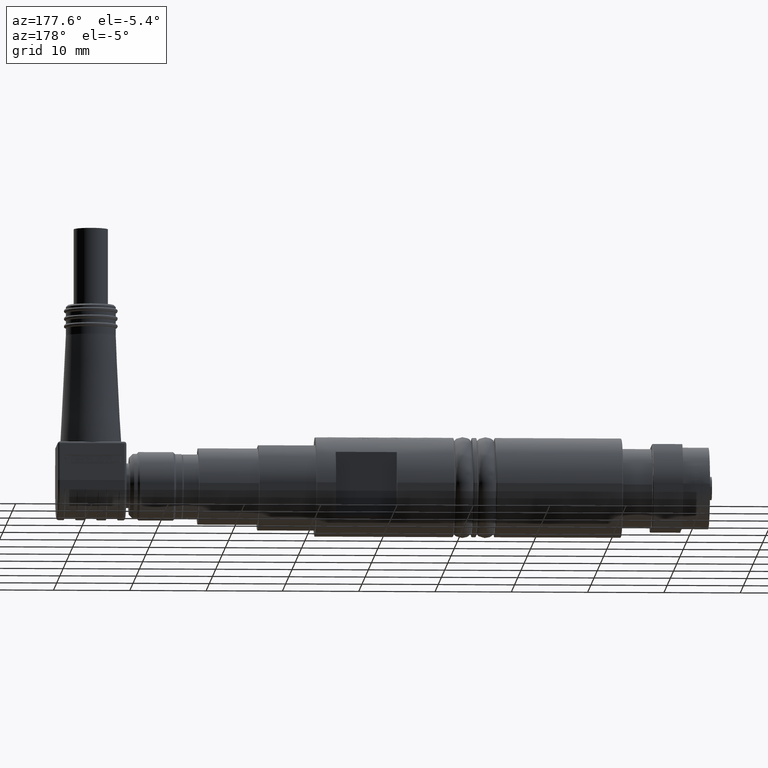
[diagram: clean part render]
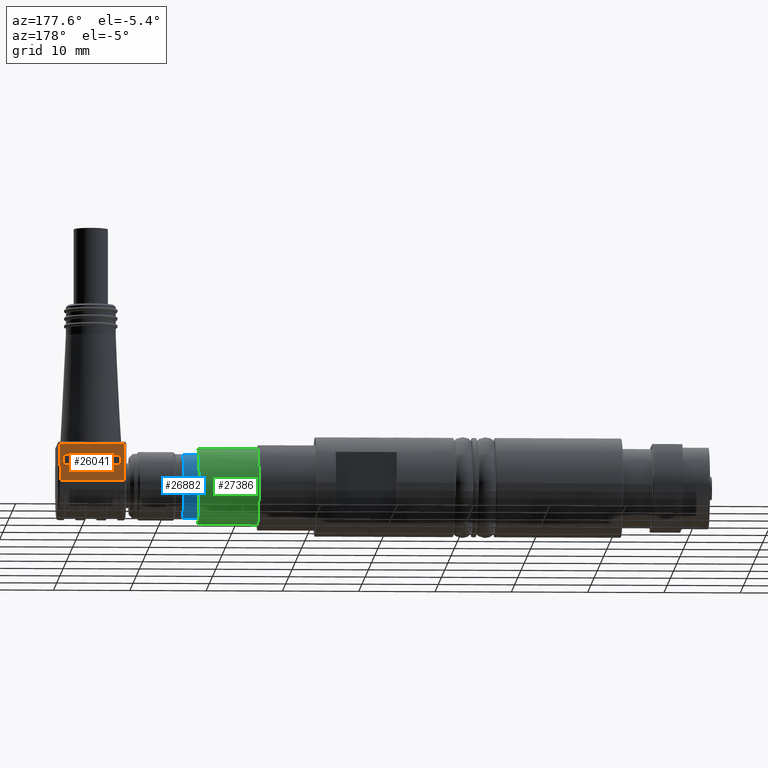
[diagram: same view with three faces highlighted in distinct colors, each labeled with its STEP entity id]
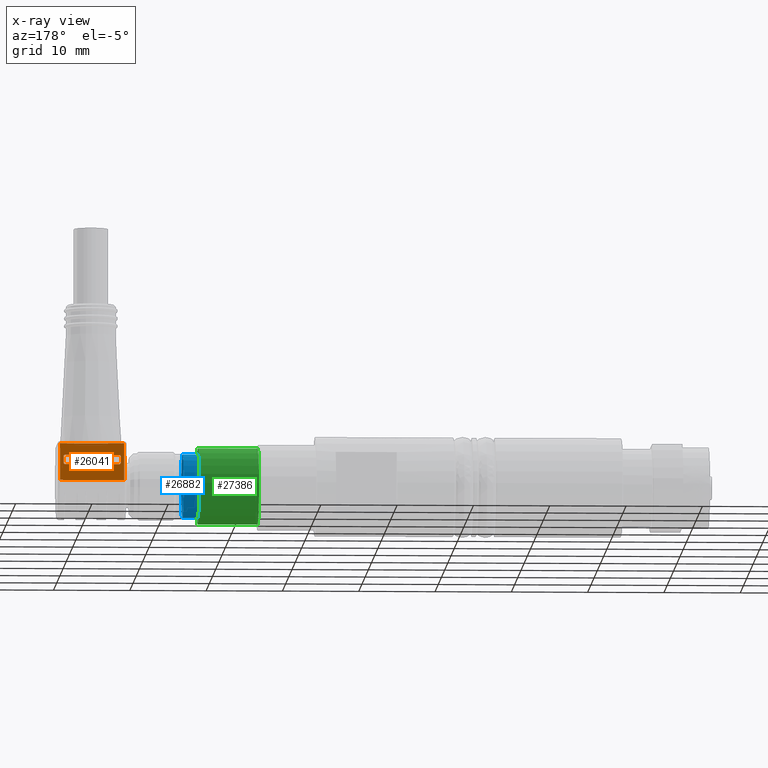
[diagram: x-ray of the same camera — body ghosted, the three highlighted faces saturated]
A machine part, auxiliary view with three faces highlighted in distinct colors.
The next image is the same camera in x-ray (body ghosted, the three faces saturated) — at least one of them is partly hidden behind the body in this view.
Their STEP definitions:

[orange] entity #26041 — the highlighted planar face has unit normal (0, 0.9967, 0.0817).
#382=PLANE('',#27516);
#1292=FACE_BOUND('',#8487,.T.);
#1474=LINE('',#35723,#3858);
#1479=LINE('',#35743,#3863);
#1487=LINE('',#35765,#3871);
#1492=LINE('',#35781,#3876);
#1493=LINE('',#35784,#3877);
#1494=LINE('',#35788,#3878);
#1495=LINE('',#35792,#3879);
#1496=LINE('',#35796,#3880);
#3858=VECTOR('',#29407,0.191849436109898);
#3863=VECTOR('',#29416,0.330708661417323);
#3871=VECTOR('',#29432,0.191849436109898);
#3876=VECTOR('',#29455,0.330708661417323);
#3877=VECTOR('',#29456,0.0334645669291339);
#3878=VECTOR('',#29459,0.279527559055118);
#3879=VECTOR('',#29462,0.0334645669291337);
#3880=VECTOR('',#29465,0.279527559055118);
#7065=FACE_OUTER_BOUND('',#8486,.T.);
#8486=EDGE_LOOP('',(#17180,#17181,#17182,#17183));
#8487=EDGE_LOOP('',(#17184,#17185,#17186,#17187,#17188,#17189,#17190,#17191));
#10098=CIRCLE('',#27517,0.00787401574803146);
#10099=CIRCLE('',#27518,0.00787401574803157);
#10100=CIRCLE('',#27519,0.00787401574803142);
#10101=CIRCLE('',#27520,0.00787401574803154);
#10821=VERTEX_POINT('',#35696);
#10827=VERTEX_POINT('',#35710);
#10828=VERTEX_POINT('',#35714);
#10836=VERTEX_POINT('',#35761);
#10840=VERTEX_POINT('',#35782);
#10841=VERTEX_POINT('',#35783);
#10842=VERTEX_POINT('',#35785);
#10843=VERTEX_POINT('',#35787);
#10844=VERTEX_POINT('',#35789);
#10845=VERTEX_POINT('',#35791);
#10846=VERTEX_POINT('',#35793);
#10847=VERTEX_POINT('',#35795);
#13365=EDGE_CURVE('',#10828,#10827,#1474,.T.);
#13371=EDGE_CURVE('',#10827,#10821,#1479,.T.);
#13381=EDGE_CURVE('',#10821,#10836,#1487,.T.);
#13390=EDGE_CURVE('',#10836,#10828,#1492,.T.);
#13391=EDGE_CURVE('',#10840,#10841,#1493,.T.);
#13392=EDGE_CURVE('',#10841,#10842,#10098,.T.);
#13393=EDGE_CURVE('',#10842,#10843,#1494,.T.);
#13394=EDGE_CURVE('',#10843,#10844,#10099,.T.);
#13395=EDGE_CURVE('',#10844,#10845,#1495,.T.);
#13396=EDGE_CURVE('',#10845,#10846,#10100,.T.);
#13397=EDGE_CURVE('',#10846,#10847,#1496,.T.);
#13398=EDGE_CURVE('',#10847,#10840,#10101,.T.);
#17180=ORIENTED_EDGE('',*,*,#13381,.F.);
#17181=ORIENTED_EDGE('',*,*,#13371,.F.);
#17182=ORIENTED_EDGE('',*,*,#13365,.F.);
#17183=ORIENTED_EDGE('',*,*,#13390,.F.);
#17184=ORIENTED_EDGE('',*,*,#13391,.T.);
#17185=ORIENTED_EDGE('',*,*,#13392,.T.);
#17186=ORIENTED_EDGE('',*,*,#13393,.T.);
#17187=ORIENTED_EDGE('',*,*,#13394,.T.);
#17188=ORIENTED_EDGE('',*,*,#13395,.T.);
#17189=ORIENTED_EDGE('',*,*,#13396,.T.);
#17190=ORIENTED_EDGE('',*,*,#13397,.T.);
#17191=ORIENTED_EDGE('',*,*,#13398,.T.);
#26041=ADVANCED_FACE('',(#7065,#1292),#382,.T.);
#27516=AXIS2_PLACEMENT_3D('',#35780,#29453,#29454);
#27517=AXIS2_PLACEMENT_3D('',#35786,#29457,#29458);
#27518=AXIS2_PLACEMENT_3D('',#35790,#29460,#29461);
#27519=AXIS2_PLACEMENT_3D('',#35794,#29463,#29464);
#27520=AXIS2_PLACEMENT_3D('',#35797,#29466,#29467);
#29407=DIRECTION('',(-5.25893123283372E-17,-0.081746005589057,0.996653194732367));
#29416=DIRECTION('',(-1.,6.43325774138834E-16,3.94430452610506E-31));
#29432=DIRECTION('',(5.25893123283372E-17,0.081746005589057,-0.996653194732367));
#29453=DIRECTION('center_axis',(6.43464564049143E-16,0.996653194732367,
0.081746005589057));
#29454=DIRECTION('ref_axis',(1.,-7.04991620636976E-16,0.));
#29455=DIRECTION('',(1.,-6.43325774138834E-16,-3.94430452610506E-31));
#29456=DIRECTION('',(5.25893123283366E-17,0.081746005589056,-0.996653194732367));
#29457=DIRECTION('center_axis',(-6.43464564049143E-16,-0.996653194732367,
-0.0817460055890549));
#29458=DIRECTION('ref_axis',(6.96650031232834E-15,0.081746005589055,-0.996653194732368));
#29459=DIRECTION('',(1.,-6.43325774138834E-16,-3.94430452610506E-31));
#29460=DIRECTION('center_axis',(-6.41172688049143E-16,-0.996653194732367,
-0.081746005589057));
#29461=DIRECTION('ref_axis',(1.,-6.43325774138834E-16,-3.94430452610506E-31));
#29462=DIRECTION('',(-5.25893123283372E-17,-0.081746005589057,0.996653194732367));
#29463=DIRECTION('center_axis',(-6.43464564049143E-16,-0.996653194732367,
-0.0817460055890549));
#29464=DIRECTION('ref_axis',(-1.11298393123283E-14,-0.0817460055890549,
0.996653194732367));
#29465=DIRECTION('',(-1.,6.43325774138834E-16,3.94430452610506E-31));
#29466=DIRECTION('center_axis',(-6.41172688049143E-16,-0.996653194732367,
-0.081746005589057));
#29467=DIRECTION('ref_axis',(-1.,6.43325774138834E-16,3.94430452610506E-31));
#35696=CARTESIAN_POINT('',(2.89084251968504,0.160889491313096,0.20568991345184));
#35710=CARTESIAN_POINT('',(3.22155118110236,0.160889491313095,0.20568991345184));
#35714=CARTESIAN_POINT('',(3.22155118110236,0.176572416389592,0.0144825600453067));
#35723=CARTESIAN_POINT('',(3.22155118110236,0.176572416389592,0.0144825600453067));
#35743=CARTESIAN_POINT('',(3.22155118110236,0.160889491313095,0.20568991345184));
#35761=CARTESIAN_POINT('',(2.89084251968504,0.176572416389593,0.0144825600453067));
#35765=CARTESIAN_POINT('',(2.89084251968504,0.160889491313096,0.20568991345184));
#35780=CARTESIAN_POINT('Origin',(2.87903149606299,0.159999936238092,0.216535433070867));
#35781=CARTESIAN_POINT('',(2.89084251968504,0.176572416389593,0.0144825600453067));
#35782=CARTESIAN_POINT('',(2.90855905511811,0.16643662959156,0.138058803564381));
#35783=CARTESIAN_POINT('',(2.90855905511811,0.169172224266785,0.104706236024125));
#35784=CARTESIAN_POINT('',(2.90855905511811,0.16643662959156,0.138058803564381));
#35785=CARTESIAN_POINT('',(2.91643307086614,0.169815893602132,0.0968585730734764));
#35786=CARTESIAN_POINT('Origin',(2.91643307086614,0.169172224266785,0.104706236024125));
#35787=CARTESIAN_POINT('',(3.19596062992126,0.169815893602132,0.0968585730734764));
#35788=CARTESIAN_POINT('',(2.91643307086614,0.169815893602132,0.0968585730734764));
#35789=CARTESIAN_POINT('',(3.20383464566929,0.169172224266785,0.104706236024125));
#35790=CARTESIAN_POINT('Origin',(3.19596062992126,0.169172224266785,0.104706236024125));
#35791=CARTESIAN_POINT('',(3.20383464566929,0.16643662959156,0.138058803564381));
#35792=CARTESIAN_POINT('',(3.20383464566929,0.169172224266785,0.104706236024125));
#35793=CARTESIAN_POINT('',(3.19596062992126,0.165792960256213,0.14590646651503));
#35794=CARTESIAN_POINT('Origin',(3.19596062992126,0.16643662959156,0.138058803564381));
#35795=CARTESIAN_POINT('',(2.91643307086614,0.165792960256214,0.14590646651503));
#35796=CARTESIAN_POINT('',(3.19596062992126,0.165792960256213,0.14590646651503));
#35797=CARTESIAN_POINT('Origin',(2.91643307086614,0.16643662959156,0.138058803564381));

[blue] entity #26882 — the highlighted cylindrical surface (bore or boss wall) has radius 4.2 mm, axis along (-1, -0, 0).
#1374=FACE_BOUND('',#9410,.T.);
#6958=CYLINDRICAL_SURFACE('',#28536,0.165354330708661);
#7906=FACE_OUTER_BOUND('',#9409,.T.);
#9409=EDGE_LOOP('',(#21811));
#9410=EDGE_LOOP('',(#21812));
#10359=CIRCLE('',#28535,0.165354330708661);
#10360=CIRCLE('',#28537,0.165354330708661);
#12364=VERTEX_POINT('',#44115);
#12365=VERTEX_POINT('',#44118);
#15676=EDGE_CURVE('',#12364,#12364,#10359,.T.);
#15677=EDGE_CURVE('',#12365,#12365,#10360,.T.);
#21811=ORIENTED_EDGE('',*,*,#15677,.F.);
#21812=ORIENTED_EDGE('',*,*,#15676,.F.);
#26882=ADVANCED_FACE('',(#7906,#1374),#6958,.T.);
#28535=AXIS2_PLACEMENT_3D('',#44116,#33152,#33153);
#28536=AXIS2_PLACEMENT_3D('',#44117,#33154,#33155);
#28537=AXIS2_PLACEMENT_3D('',#44119,#33156,#33157);
#33152=DIRECTION('center_axis',(1.,1.259433316478E-16,-1.90147897844949E-18));
#33153=DIRECTION('ref_axis',(-1.90147897844948E-18,-5.55111512312579E-17,
-1.));
#33154=DIRECTION('center_axis',(-1.,-1.259433316478E-16,1.90147897844949E-18));
#33155=DIRECTION('ref_axis',(-1.90147897844948E-18,-5.55111512312579E-17,
-1.));
#33156=DIRECTION('center_axis',(-1.,-1.19579530510671E-16,0.));
#33157=DIRECTION('ref_axis',(-1.90147897844948E-18,-5.55111512312579E-17,
-1.));
#44115=CARTESIAN_POINT('',(2.58375590551181,2.98907962786249E-16,0.165354330708661));
#44116=CARTESIAN_POINT('Origin',(2.58375590551181,3.09979018710289E-16,
9.12940671313887E-17));
#44117=CARTESIAN_POINT('Origin',(2.58375590551181,3.09979018710289E-16,
9.12940671313887E-17));
#44118=CARTESIAN_POINT('',(2.5050157480315,3.29491295384209E-16,0.165354330708661));
#44119=CARTESIAN_POINT('Origin',(2.5050157480315,3.00062220942746E-16,9.14437898855973E-17));

[green] entity #27386 — the highlighted cylindrical surface (bore or boss wall) has radius 5 mm, axis along (1, 0, 0).
#1439=FACE_BOUND('',#9979,.T.);
#7014=CYLINDRICAL_SURFACE('',#29184,0.196850393700787);
#8410=FACE_OUTER_BOUND('',#9978,.T.);
#9978=EDGE_LOOP('',(#24475));
#9979=EDGE_LOOP('',(#24476));
#10571=CIRCLE('',#29125,0.196850393700787);
#10595=CIRCLE('',#29185,0.196850393700787);
#13229=VERTEX_POINT('',#51213);
#13258=VERTEX_POINT('',#51373);
#16966=EDGE_CURVE('',#13229,#13229,#10571,.T.);
#17009=EDGE_CURVE('',#13258,#13258,#10595,.T.);
#24475=ORIENTED_EDGE('',*,*,#16966,.T.);
#24476=ORIENTED_EDGE('',*,*,#17009,.F.);
#27386=ADVANCED_FACE('',(#8410,#1439),#7014,.T.);
#29125=AXIS2_PLACEMENT_3D('',#51214,#35006,#35007);
#29184=AXIS2_PLACEMENT_3D('',#51372,#35139,#35140);
#29185=AXIS2_PLACEMENT_3D('',#51374,#35141,#35142);
#35006=DIRECTION('center_axis',(1.,1.19579530510671E-16,0.));
#35007=DIRECTION('ref_axis',(0.,0.,-1.));
#35139=DIRECTION('center_axis',(1.,1.19579530510671E-16,0.));
#35140=DIRECTION('ref_axis',(-1.19579530510671E-16,1.,0.));
#35141=DIRECTION('center_axis',(1.,1.19579530510671E-16,0.));
#35142=DIRECTION('ref_axis',(0.,0.,-1.));
#51213=CARTESIAN_POINT('',(2.19627559055118,0.196850393700788,0.));
#51214=CARTESIAN_POINT('Origin',(2.19627559055118,2.62629603990156E-16,
0.));
#51372=CARTESIAN_POINT('Origin',(2.35064566929134,2.81089105530799E-16,
0.));
#51373=CARTESIAN_POINT('',(2.5050157480315,0.196850393700788,0.));
#51374=CARTESIAN_POINT('Origin',(2.5050157480315,2.99548607071443E-16,0.));